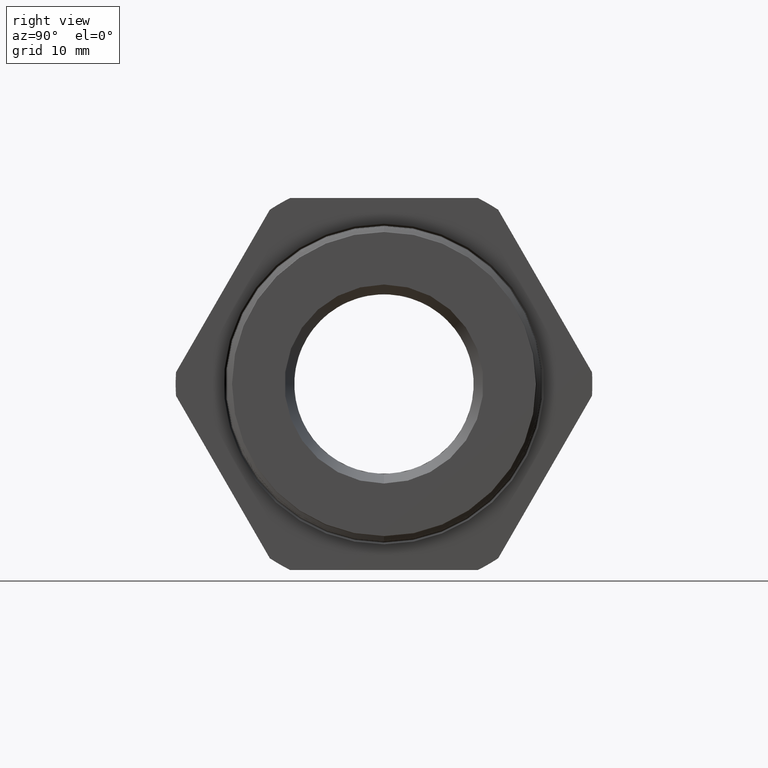
[diagram: clean part render]
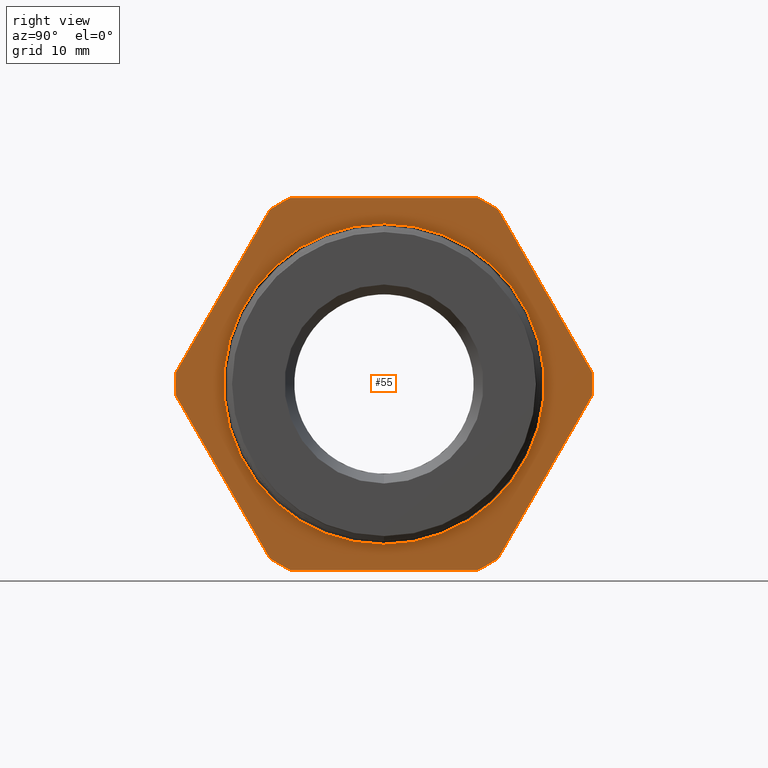
[diagram: same view with one face highlighted and labeled with its STEP entity id]
A machine part, right view. The second image highlights one B-rep face of the part: STEP entity #55.
In plain terms, the highlighted planar face has unit normal (-1, 0, 0).
Its self-contained STEP definition (entity closure, byte-faithful):
#45 = VERTEX_POINT ( 'NONE', #576 ) ;
#46 = ORIENTED_EDGE ( 'NONE', *, *, #47, .T. ) ;
#47 = EDGE_CURVE ( 'NONE', #45, #48, #639, .T. ) ;
#48 = VERTEX_POINT ( 'NONE', #635 ) ;
#49 = VERTEX_POINT ( 'NONE', #634 ) ;
#50 = ORIENTED_EDGE ( 'NONE', *, *, #517, .F. ) ;
#51 = VERTEX_POINT ( 'NONE', #633 ) ;
#52 = VERTEX_POINT ( 'NONE', #632 ) ;
#53 = ORIENTED_EDGE ( 'NONE', *, *, #56, .T. ) ;
#54 = EDGE_LOOP ( 'NONE', ( #53, #58, #46, #50, #518, #100, #97, #94, #91, #88, #59, #60 ) ) ;
#55 = ADVANCED_FACE ( 'NONE', ( #631, #630 ), #629, .F. ) ;
#56 = EDGE_CURVE ( 'NONE', #52, #51, #624, .T. ) ;
#57 = EDGE_CURVE ( 'NONE', #45, #51, #620, .T. ) ;
#58 = ORIENTED_EDGE ( 'NONE', *, *, #57, .F. ) ;
#59 = ORIENTED_EDGE ( 'NONE', *, *, #65, .T. ) ;
#60 = ORIENTED_EDGE ( 'NONE', *, *, #67, .F. ) ;
#61 = ORIENTED_EDGE ( 'NONE', *, *, #68, .F. ) ;
#62 = EDGE_LOOP ( 'NONE', ( #61, #63 ) ) ;
#63 = ORIENTED_EDGE ( 'NONE', *, *, #332, .F. ) ;
#64 = VERTEX_POINT ( 'NONE', #615 ) ;
#65 = EDGE_CURVE ( 'NONE', #84, #64, #614, .T. ) ;
#67 = EDGE_CURVE ( 'NONE', #52, #64, #609, .T. ) ;
#68 = EDGE_CURVE ( 'NONE', #327, #336, #668, .T. ) ;
#84 = VERTEX_POINT ( 'NONE', #691 ) ;
#86 = EDGE_CURVE ( 'NONE', #92, #87, #684, .T. ) ;
#87 = VERTEX_POINT ( 'NONE', #680 ) ;
#88 = ORIENTED_EDGE ( 'NONE', *, *, #90, .F. ) ;
#90 = EDGE_CURVE ( 'NONE', #84, #87, #679, .T. ) ;
#91 = ORIENTED_EDGE ( 'NONE', *, *, #86, .T. ) ;
#92 = VERTEX_POINT ( 'NONE', #674 ) ;
#93 = EDGE_CURVE ( 'NONE', #92, #98, #673, .T. ) ;
#94 = ORIENTED_EDGE ( 'NONE', *, *, #93, .F. ) ;
#95 = EDGE_CURVE ( 'NONE', #96, #98, #732, .T. ) ;
#96 = VERTEX_POINT ( 'NONE', #728 ) ;
#97 = ORIENTED_EDGE ( 'NONE', *, *, #95, .T. ) ;
#98 = VERTEX_POINT ( 'NONE', #727 ) ;
#99 = EDGE_CURVE ( 'NONE', #96, #508, #726, .T. ) ;
#100 = ORIENTED_EDGE ( 'NONE', *, *, #99, .F. ) ;
#327 = VERTEX_POINT ( 'NONE', #1120 ) ;
#332 = EDGE_CURVE ( 'NONE', #336, #327, #1119, .T. ) ;
#336 = VERTEX_POINT ( 'NONE', #1107 ) ;
#508 = VERTEX_POINT ( 'NONE', #1395 ) ;
#517 = EDGE_CURVE ( 'NONE', #49, #48, #1379, .T. ) ;
#518 = ORIENTED_EDGE ( 'NONE', *, *, #519, .T. ) ;
#519 = EDGE_CURVE ( 'NONE', #49, #508, #1438, .T. ) ;
#576 = CARTESIAN_POINT ( 'NONE',  ( 0.0000000000000000000, -0.3278475255358812000, -0.6499999999999999100 ) ) ;
#607 = CARTESIAN_POINT ( 'NONE',  ( 0.0000000000000000000, 0.0000000000000000000, 0.0000000000000000000 ) ) ;
#608 = AXIS2_PLACEMENT_3D ( 'NONE', #607, #670, #669 ) ;
#609 = CIRCLE ( 'NONE', #608, 0.7280000000000000900 ) ;
#610 = CARTESIAN_POINT ( 'NONE',  ( 0.0000000000000000000, 0.0000000000000000000, 0.0000000000000000000 ) ) ;
#611 = DIRECTION ( 'NONE',  ( 0.0000000000000000000, -0.5000000000000001100, -0.8660254037844386000 ) ) ;
#612 = VECTOR ( 'NONE', #611, 39.37007874015748100 ) ;
#613 = CARTESIAN_POINT ( 'NONE',  ( 0.0000000000000000000, -0.3989927496919442600, 0.6089242856819405700 ) ) ;
#614 = LINE ( 'NONE', #613, #612 ) ;
#615 = CARTESIAN_POINT ( 'NONE',  ( 0.0000000000000000000, -0.7268402752278255700, 0.04107571431805941800 ) ) ;
#616 = DIRECTION ( 'NONE',  ( 0.0000000000000000000, 0.0000000000000000000, 1.000000000000000000 ) ) ;
#617 = DIRECTION ( 'NONE',  ( -1.000000000000000000, 0.0000000000000000000, 0.0000000000000000000 ) ) ;
#618 = CARTESIAN_POINT ( 'NONE',  ( 0.0000000000000000000, 0.0000000000000000000, 0.0000000000000000000 ) ) ;
#619 = AXIS2_PLACEMENT_3D ( 'NONE', #618, #617, #616 ) ;
#620 = CIRCLE ( 'NONE', #619, 0.7280000000000000900 ) ;
#621 = DIRECTION ( 'NONE',  ( 0.0000000000000000000, 0.5000000000000003300, -0.8660254037844383700 ) ) ;
#622 = VECTOR ( 'NONE', #621, 39.37007874015748100 ) ;
#623 = CARTESIAN_POINT ( 'NONE',  ( 0.0000000000000000000, -0.7268402752278255700, -0.04107571431805972400 ) ) ;
#624 = LINE ( 'NONE', #623, #622 ) ;
#625 = DIRECTION ( 'NONE',  ( 0.0000000000000000000, 0.0000000000000000000, 1.000000000000000000 ) ) ;
#626 = DIRECTION ( 'NONE',  ( -1.000000000000000000, 0.0000000000000000000, 0.0000000000000000000 ) ) ;
#627 = CARTESIAN_POINT ( 'NONE',  ( 0.0000000000000000000, 0.7280000000000000900, 0.0000000000000000000 ) ) ;
#628 = AXIS2_PLACEMENT_3D ( 'NONE', #627, #626, #625 ) ;
#629 = PLANE ( 'NONE',  #628 ) ;
#630 = FACE_BOUND ( 'NONE', #62, .T. ) ;
#631 = FACE_OUTER_BOUND ( 'NONE', #54, .T. ) ;
#632 = CARTESIAN_POINT ( 'NONE',  ( 0.0000000000000000000, -0.7268402752278255700, -0.04107571431805972400 ) ) ;
#633 = CARTESIAN_POINT ( 'NONE',  ( 0.0000000000000000000, -0.3989927496919442600, -0.6089242856819405700 ) ) ;
#634 = CARTESIAN_POINT ( 'NONE',  ( 0.0000000000000000000, 0.3989927496919443200, -0.6089242856819405700 ) ) ;
#635 = CARTESIAN_POINT ( 'NONE',  ( 0.0000000000000000000, 0.3278475255358810900, -0.6500000000000000200 ) ) ;
#636 = DIRECTION ( 'NONE',  ( 0.0000000000000000000, 1.000000000000000000, 0.0000000000000000000 ) ) ;
#637 = VECTOR ( 'NONE', #636, 39.37007874015748100 ) ;
#638 = CARTESIAN_POINT ( 'NONE',  ( 0.0000000000000000000, -0.3278475255358810900, -0.6500000000000000200 ) ) ;
#639 = LINE ( 'NONE', #638, #637 ) ;
#665 = DIRECTION ( 'NONE',  ( 0.0000000000000000000, 0.0000000000000000000, 1.000000000000000000 ) ) ;
#666 = DIRECTION ( 'NONE',  ( 1.000000000000000000, 0.0000000000000000000, 0.0000000000000000000 ) ) ;
#667 = AXIS2_PLACEMENT_3D ( 'NONE', #610, #666, #665 ) ;
#668 = CIRCLE ( 'NONE', #667, 0.5599999999999999400 ) ;
#669 = DIRECTION ( 'NONE',  ( 0.0000000000000000000, 0.0000000000000000000, 1.000000000000000000 ) ) ;
#670 = DIRECTION ( 'NONE',  ( -1.000000000000000000, 0.0000000000000000000, 0.0000000000000000000 ) ) ;
#671 = CARTESIAN_POINT ( 'NONE',  ( 0.0000000000000000000, 0.0000000000000000000, 0.0000000000000000000 ) ) ;
#672 = AXIS2_PLACEMENT_3D ( 'NONE', #671, #734, #733 ) ;
#673 = CIRCLE ( 'NONE', #672, 0.7280000000000000900 ) ;
#674 = CARTESIAN_POINT ( 'NONE',  ( 0.0000000000000000000, 0.3278475255358814200, 0.6499999999999998000 ) ) ;
#675 = DIRECTION ( 'NONE',  ( 0.0000000000000000000, 0.0000000000000000000, 1.000000000000000000 ) ) ;
#676 = DIRECTION ( 'NONE',  ( -1.000000000000000000, 0.0000000000000000000, 0.0000000000000000000 ) ) ;
#677 = CARTESIAN_POINT ( 'NONE',  ( 0.0000000000000000000, 0.0000000000000000000, 0.0000000000000000000 ) ) ;
#678 = AXIS2_PLACEMENT_3D ( 'NONE', #677, #676, #675 ) ;
#679 = CIRCLE ( 'NONE', #678, 0.7280000000000000900 ) ;
#680 = CARTESIAN_POINT ( 'NONE',  ( 0.0000000000000000000, -0.3278475255358813700, 0.6499999999999999100 ) ) ;
#681 = DIRECTION ( 'NONE',  ( 0.0000000000000000000, -1.000000000000000000, 0.0000000000000000000 ) ) ;
#682 = VECTOR ( 'NONE', #681, 39.37007874015748100 ) ;
#683 = CARTESIAN_POINT ( 'NONE',  ( 0.0000000000000000000, 0.3278475255358813700, 0.6499999999999999100 ) ) ;
#684 = LINE ( 'NONE', #683, #682 ) ;
#691 = CARTESIAN_POINT ( 'NONE',  ( 0.0000000000000000000, -0.3989927496919439800, 0.6089242856819409000 ) ) ;
#722 = DIRECTION ( 'NONE',  ( 0.0000000000000000000, 0.0000000000000000000, 1.000000000000000000 ) ) ;
#723 = DIRECTION ( 'NONE',  ( -1.000000000000000000, 0.0000000000000000000, 0.0000000000000000000 ) ) ;
#724 = CARTESIAN_POINT ( 'NONE',  ( 0.0000000000000000000, 0.0000000000000000000, 0.0000000000000000000 ) ) ;
#725 = AXIS2_PLACEMENT_3D ( 'NONE', #724, #723, #722 ) ;
#726 = CIRCLE ( 'NONE', #725, 0.7280000000000000900 ) ;
#727 = CARTESIAN_POINT ( 'NONE',  ( 0.0000000000000000000, 0.3989927496919443200, 0.6089242856819405700 ) ) ;
#728 = CARTESIAN_POINT ( 'NONE',  ( 0.0000000000000000000, 0.7268402752278255700, 0.04107571431805956400 ) ) ;
#729 = DIRECTION ( 'NONE',  ( 0.0000000000000000000, -0.5000000000000003300, 0.8660254037844383700 ) ) ;
#730 = VECTOR ( 'NONE', #729, 39.37007874015748100 ) ;
#731 = CARTESIAN_POINT ( 'NONE',  ( 0.0000000000000000000, 0.7268402752278256800, 0.04107571431805962700 ) ) ;
#732 = LINE ( 'NONE', #731, #730 ) ;
#733 = DIRECTION ( 'NONE',  ( 0.0000000000000000000, 0.0000000000000000000, 1.000000000000000000 ) ) ;
#734 = DIRECTION ( 'NONE',  ( -1.000000000000000000, 0.0000000000000000000, 0.0000000000000000000 ) ) ;
#1107 = CARTESIAN_POINT ( 'NONE',  ( 0.0000000000000000000, 6.858022075225175100E-017, 0.5599999999999999400 ) ) ;
#1115 = DIRECTION ( 'NONE',  ( 0.0000000000000000000, 0.0000000000000000000, 1.000000000000000000 ) ) ;
#1116 = DIRECTION ( 'NONE',  ( 1.000000000000000000, 0.0000000000000000000, 0.0000000000000000000 ) ) ;
#1117 = CARTESIAN_POINT ( 'NONE',  ( 0.0000000000000000000, 0.0000000000000000000, 0.0000000000000000000 ) ) ;
#1118 = AXIS2_PLACEMENT_3D ( 'NONE', #1117, #1116, #1115 ) ;
#1119 = CIRCLE ( 'NONE', #1118, 0.5599999999999999400 ) ;
#1120 = CARTESIAN_POINT ( 'NONE',  ( 0.0000000000000000000, 0.0000000000000000000, -0.5599999999999999400 ) ) ;
#1379 = CIRCLE ( 'NONE', #1441, 0.7280000000000000900 ) ;
#1384 = CARTESIAN_POINT ( 'NONE',  ( 0.0000000000000000000, 0.0000000000000000000, 0.0000000000000000000 ) ) ;
#1395 = CARTESIAN_POINT ( 'NONE',  ( 0.0000000000000000000, 0.7268402752278256800, -0.04107571431805931400 ) ) ;
#1435 = DIRECTION ( 'NONE',  ( 0.0000000000000000000, 0.5000000000000001100, 0.8660254037844386000 ) ) ;
#1436 = VECTOR ( 'NONE', #1435, 39.37007874015748100 ) ;
#1437 = CARTESIAN_POINT ( 'NONE',  ( 0.0000000000000000000, 0.3989927496919443200, -0.6089242856819405700 ) ) ;
#1438 = LINE ( 'NONE', #1437, #1436 ) ;
#1439 = DIRECTION ( 'NONE',  ( 0.0000000000000000000, 0.0000000000000000000, 1.000000000000000000 ) ) ;
#1440 = DIRECTION ( 'NONE',  ( -1.000000000000000000, 0.0000000000000000000, 0.0000000000000000000 ) ) ;
#1441 = AXIS2_PLACEMENT_3D ( 'NONE', #1384, #1440, #1439 ) ;